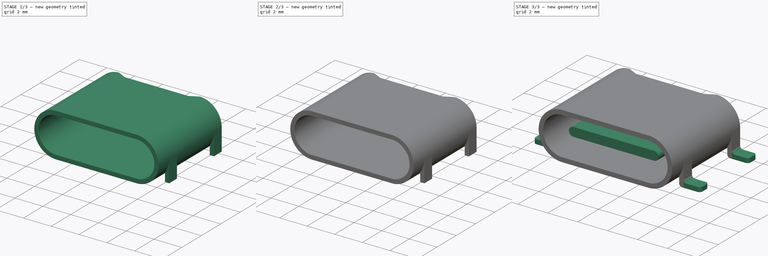
[diagram: build sequence overview — one tinted view per stage of 3, left to right]
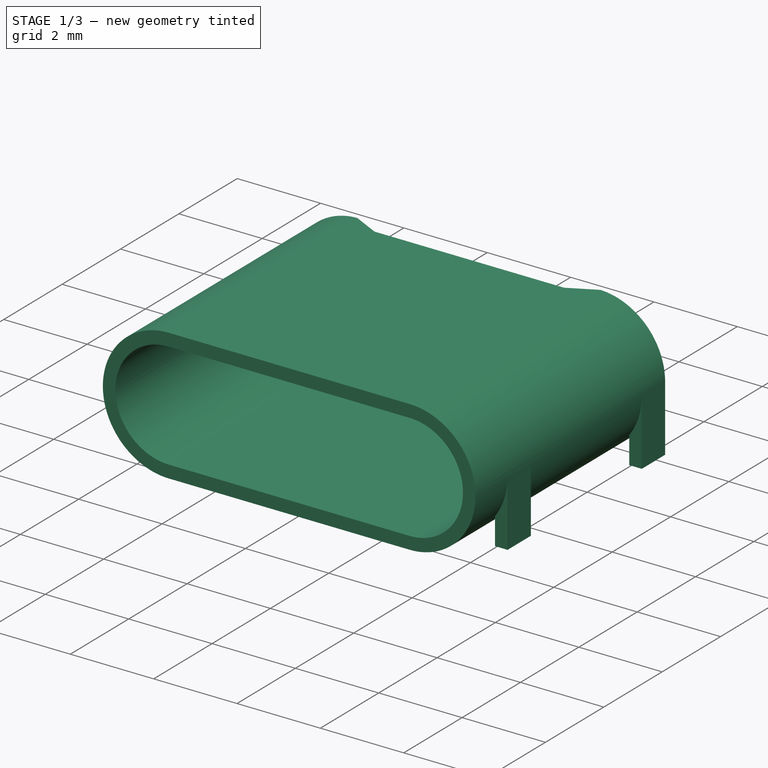
[diagram: stage 1 of 3 — iso view after this stage's code; geometry added in this stage tinted green]
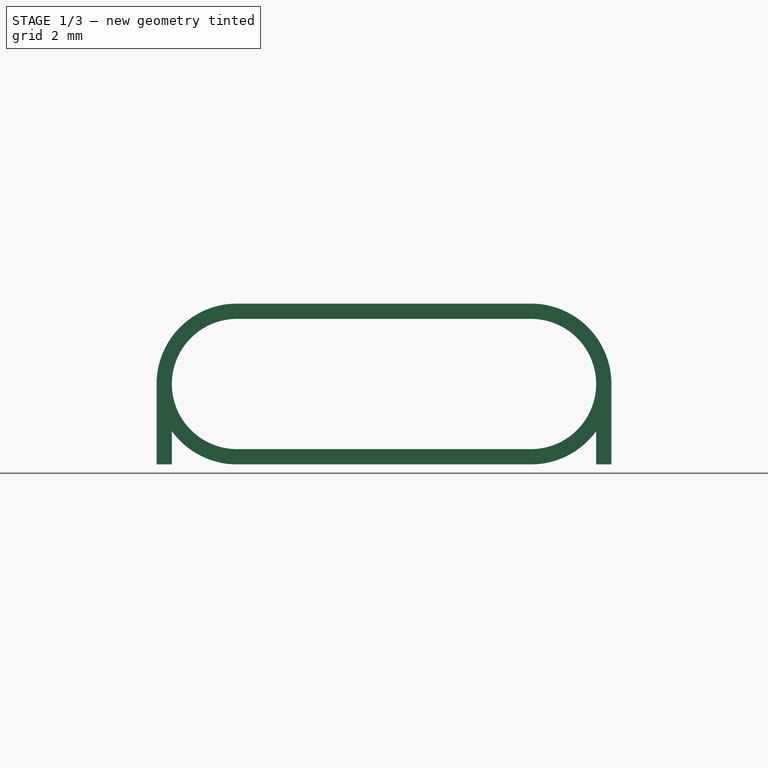
[diagram: stage 1 of 3 — front view after this stage's code; geometry added in this stage tinted green]
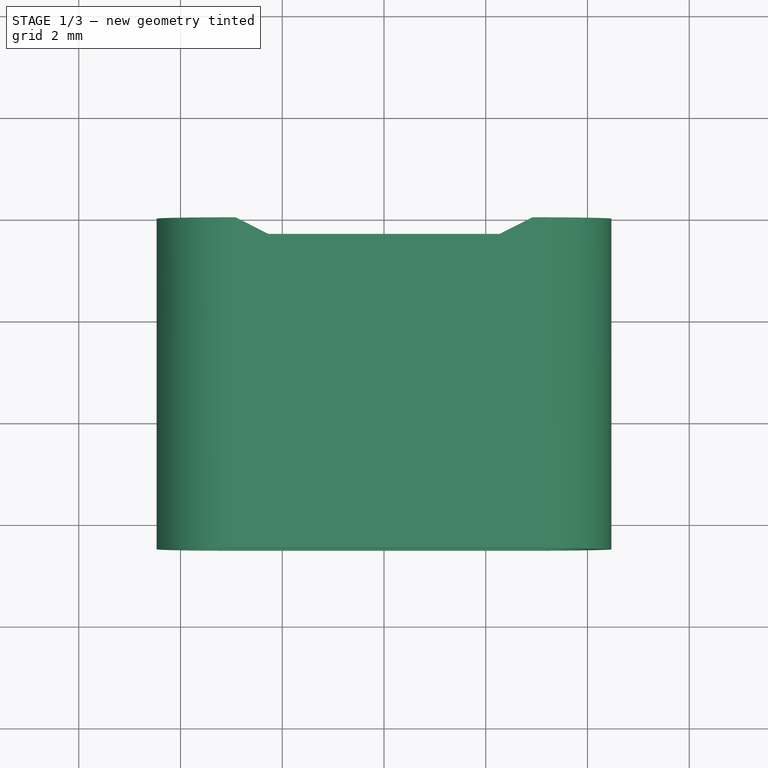
[diagram: stage 1 of 3 — top view after this stage's code; geometry added in this stage tinted green]
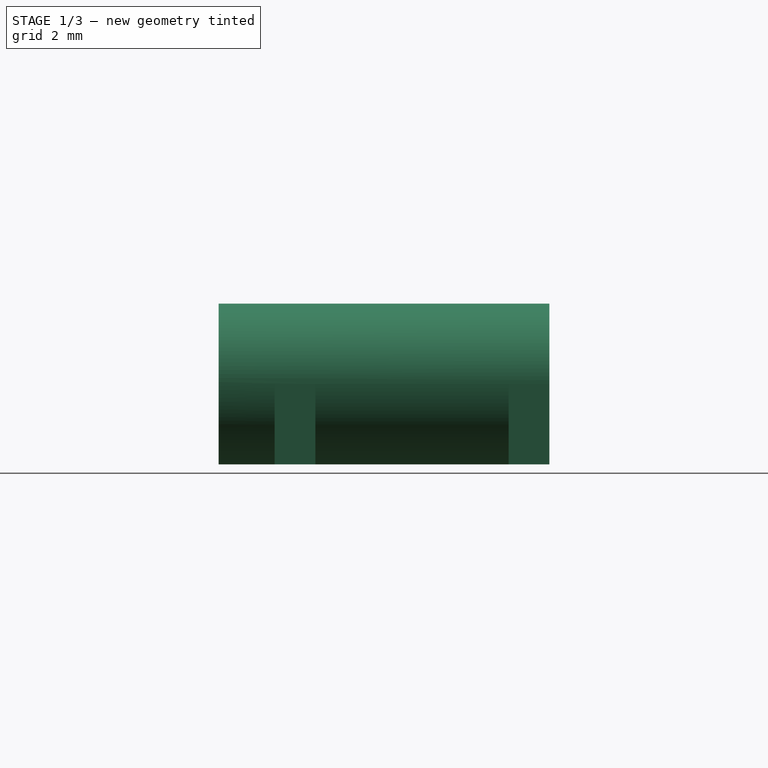
[diagram: stage 1 of 3 — right view after this stage's code; geometry added in this stage tinted green]
FCSTD DOCUMENT  (FreeCAD 0.20R27537 (Git))
Label: BTC-TC6S-23
License: All rights reserved
LicenseURL: http://en.wikipedia.org/wiki/All_rights_reserved
objects: Sketcher::SketchObject×9, PartDesign::Pad×6, PartDesign::Plane×3, PartDesign::Pocket×1, PartDesign::Fillet×1, PartDesign::Body×1
note: 29 computed .brp shape members not serialized (recipe doc carries the construction recipe); baked Part::Feature solids carry a one-line shape summary decoded from their .brp

FEATURE [Sketcher::SketchObject] Sketch
  FullyConstrained = true
  MapMode = 5
  Placement = pos=(0,0,0) rot=(1,0,0;1.5708rad)
  Support = -> [XZ_Plane]
  sketch-geometry (10):
    g0: ArcOfCircle CenterX=-2.89 CenterY=1.58 CenterZ=0 NormalX=0 NormalY=0 NormalZ=1 AngleXU=0 Radius=1.58 StartAngle=1.5708 EndAngle=4.71239
    g1: ArcOfCircle CenterX=2.89 CenterY=1.58 CenterZ=0 NormalX=0 NormalY=0 NormalZ=1 AngleXU=0 Radius=1.58 StartAngle=4.71239 EndAngle=7.85398
    g2: LineSegment StartX=-2.89 StartY=0 StartZ=0 EndX=2.89 EndY=0 EndZ=0
    g3: LineSegment StartX=2.89 StartY=3.16 StartZ=0 EndX=-2.89 EndY=3.16 EndZ=0
    g4: GeomPoint X=-4.47 Y=1.58 Z=0
    g5: GeomPoint X=4.47 Y=1.58 Z=0
    g6: ArcOfCircle CenterX=-2.89 CenterY=1.58 CenterZ=0 NormalX=0 NormalY=0 NormalZ=1 AngleXU=0 Radius=1.28 StartAngle=1.5708 EndAngle=4.71239
    g7: ArcOfCircle CenterX=2.89 CenterY=1.58 CenterZ=0 NormalX=0 NormalY=0 NormalZ=1 AngleXU=0 Radius=1.28 StartAngle=4.71239 EndAngle=7.85398
    g8: LineSegment StartX=-2.89 StartY=0.3 StartZ=0 EndX=2.89 EndY=0.3 EndZ=0
    g9: LineSegment StartX=2.89 StartY=2.86 StartZ=0 EndX=-2.89 EndY=2.86 EndZ=0
  constraints (21):
    c: Tangent(g0,g2) = -1.5708
    c: Tangent(g2,g1) = -1.5708
    c: Tangent(g1,g3) = -1.5708
    c: Tangent(g3,g0) = -1.5708
    c: Equal(g0,g1)
    c: PointOnObject(g0,g-1)
    c: DistanceY(g0,g0) = 3.16
    c: PointOnObject(g5,g1)
    c: PointOnObject(g4,g0)
    c: Horizontal(g4,g5)
    c: Horizontal(g4,g0)
    c: DistanceX(g4,g5) = 8.94
    c: Symmetric(g0,g1,g-2)
    c: Tangent(g6,g8) = -1.5708
    c: Tangent(g8,g7) = -1.5708
    c: Tangent(g7,g9) = -1.5708
    c: Tangent(g9,g6) = -1.5708
    c: Equal(g6,g7)
    c: Symmetric(g6,g7,g-2)
    c: Coincident(g6,g0)
    c: DistanceY(g6,g0) = 0.3
FEATURE [PartDesign::Pad] Pad
  Direction = (0,-1,2e-16)
  Length = 6.5
  Length2 = 10
  Placement = pos=(0,0,0) rot=(1,0,0;1.5708rad)
  Profile = -> Sketch
  ReferenceAxis = -> Sketch [N_Axis]
  Type = 0
FEATURE [PartDesign::Plane] DatumPlane  label="Top"
  Length = 60
  MapMode = 5
  Placement = pos=(0,2.1e-15,3.16) rot=(0,0,1;3.14159rad)
  ResizeMode = 0
  Support = -> [Pad]
  Width = 60
FEATURE [Sketcher::SketchObject] Sketch001
  FullyConstrained = false
  MapMode = 5
  Placement = pos=(0,2.1e-15,3.16) rot=(0,0,1;3.14159rad)
  Support = -> [DatumPlane]
  sketch-geometry (4):
    g0: LineSegment StartX=-2.917 StartY=0 StartZ=0 EndX=2.917 EndY=0 EndZ=0
    g1: LineSegment StartX=2.917 StartY=0 StartZ=0 EndX=2.27549 EndY=0.326 EndZ=0
    g2: LineSegment StartX=2.27549 StartY=0.326 StartZ=0 EndX=-2.27549 EndY=0.326 EndZ=0
    g3: LineSegment StartX=-2.917 StartY=0 StartZ=0 EndX=-2.27549 EndY=0.326 EndZ=0
  constraints (9):
    c: PointOnObject(g0,g-1)
    c: Coincident(g0,g1)
    c: Coincident(g1,g2)
    c: Coincident(g3,g0)
    c: Coincident(g3,g2)
    c: DistanceY(g0,g1) = 0.326
    c: DistanceX(g0,g0) = 5.834
    c: Symmetric(g2,g1,g-2)
    c: Symmetric(g0,g0,g-2)
FEATURE [PartDesign::Pocket] Pocket  label="topBackCutout"
  BaseFeature = -> Pad
  Direction = (0,-7e-16,-1)
  Length = 1
  Length2 = 5
  Placement = pos=(0,0,0) rot=(1,0,0;1.5708rad)
  Profile = -> Sketch001
  ReferenceAxis = -> Sketch001 [N_Axis]
  Type = 1
FEATURE [PartDesign::Plane] DatumPlane001  label="BottomPlane"
  Length = 60
  MapMode = 5
  Placement = pos=(0,0,0) rot=(1,0,0;3.14159rad)
  ResizeMode = 0
  Support = -> [Pocket]
  Width = 60
FEATURE [Sketcher::SketchObject] Sketch002
  FullyConstrained = true
  MapMode = 5
  Placement = pos=(0,0,0) rot=(1,0,0;3.14159rad)
  Support = -> [DatumPlane001]
  sketch-geometry (16):
    g0: LineSegment StartX=-4.47 StartY=5.4 StartZ=0 EndX=-4.17 EndY=5.4 EndZ=0
    g1: LineSegment StartX=-4.17 StartY=5.4 StartZ=0 EndX=-4.17 EndY=4.6 EndZ=0
    g2: LineSegment StartX=-4.17 StartY=4.6 StartZ=0 EndX=-4.47 EndY=4.6 EndZ=0
    g3: LineSegment StartX=-4.47 StartY=4.6 StartZ=0 EndX=-4.47 EndY=5.4 EndZ=0
    g4: LineSegment StartX=4.17 StartY=5.4 StartZ=0 EndX=4.47 EndY=5.4 EndZ=0
    g5: LineSegment StartX=4.47 StartY=5.4 StartZ=0 EndX=4.47 EndY=4.6 EndZ=0
    g6: LineSegment StartX=4.47 StartY=4.6 StartZ=0 EndX=4.17 EndY=4.6 EndZ=0
    g7: LineSegment StartX=4.17 StartY=4.6 StartZ=0 EndX=4.17 EndY=5.4 EndZ=0
    g8: LineSegment StartX=-4.47 StartY=0.8 StartZ=0 EndX=-4.17 EndY=0.8 EndZ=0
    g9: LineSegment StartX=-4.17 StartY=0.8 StartZ=0 EndX=-4.17 EndY=0 EndZ=0
    g10: LineSegment StartX=-4.17 StartY=0 StartZ=0 EndX=-4.47 EndY=0 EndZ=0
    g11: LineSegment StartX=-4.47 StartY=0 StartZ=0 EndX=-4.47 EndY=0.8 EndZ=0
    g12: LineSegment StartX=4.17 StartY=0.8 StartZ=0 EndX=4.47 EndY=0.8 EndZ=0
    g13: LineSegment StartX=4.47 StartY=0.8 StartZ=0 EndX=4.47 EndY=0 EndZ=0
    g14: LineSegment StartX=4.47 StartY=0 StartZ=0 EndX=4.17 EndY=0 EndZ=0
    g15: LineSegment StartX=4.17 StartY=0 StartZ=0 EndX=4.17 EndY=0.8 EndZ=0
  constraints (46):
    c: Coincident(g0,g1)
    c: Coincident(g1,g2)
    c: Coincident(g2,g3)
    c: Coincident(g3,g0)
    c: Horizontal(g0)
    c: Horizontal(g2)
    c: Vertical(g1)
    c: Vertical(g3)
    c: Coincident(g4,g5)
    c: Coincident(g5,g6)
    c: Coincident(g6,g7)
    c: Coincident(g7,g4)
    c: Horizontal(g4)
    c: Horizontal(g6)
    c: Vertical(g5)
    c: Vertical(g7)
    c: Coincident(g8,g9)
    c: Coincident(g9,g10)
    c: Coincident(g10,g11)
    c: Coincident(g11,g8)
    c: Horizontal(g8)
    c: Horizontal(g10)
    c: Vertical(g9)
    c: Vertical(g11)
    c: PointOnObject(g9,g-1)
    c: Coincident(g12,g13)
    c: Coincident(g13,g14)
    c: Coincident(g14,g15)
    c: Coincident(g15,g12)
    c: Horizontal(g12)
    c: Horizontal(g14)
    c: Vertical(g13)
    c: Vertical(g15)
    c: PointOnObject(g13,g-1)
    c: Equal(g8,g2)
    c: Equal(g8,g12)
    c: Equal(g1,g7)
    c: Symmetric(g0,g4,g-2)
    c: Vertical(g8,g2)
    c: Symmetric(g8,g12,g-2)
    c: Vertical(g5,g12)
    c: DistanceY(g5,g5) = 0.8
    c: DistanceY(g13,g13) = 0.8
    c: DistanceY(g12,g6) = 3.8
    c: DistanceX(g2,g2) = 0.3
    c: DistanceX(g0,g4) = 8.94
FEATURE [PartDesign::Pad] Pad001  label="Legs"
  BaseFeature = -> Pocket
  Direction = (0,-1.1e-15,-1)
  Length = 1.58
  Length2 = 0.8
  Placement = pos=(0,0,0) rot=(1,0,0;1.5708rad)
  Profile = -> Sketch002
  ReferenceAxis = -> Sketch002 [N_Axis]
  Reversed = true
  Type = 0
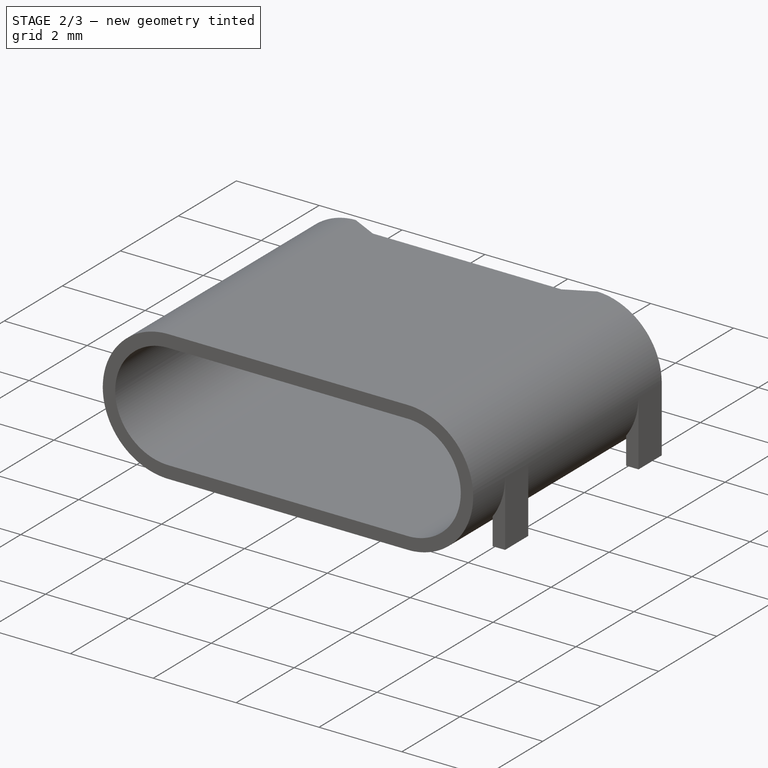
[diagram: stage 2 of 3 — iso view after this stage's code; geometry added in this stage tinted green]
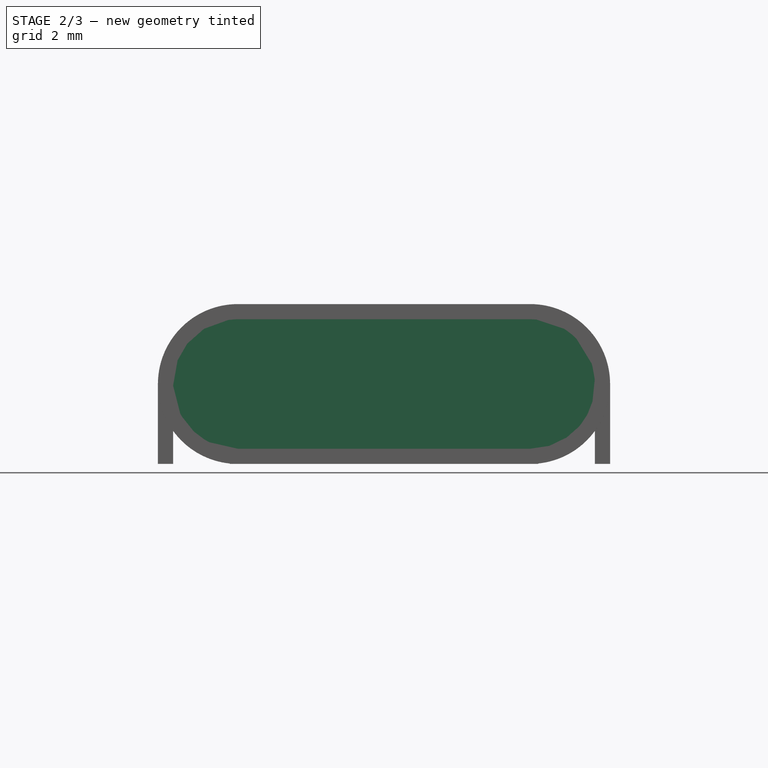
[diagram: stage 2 of 3 — front view after this stage's code; geometry added in this stage tinted green]
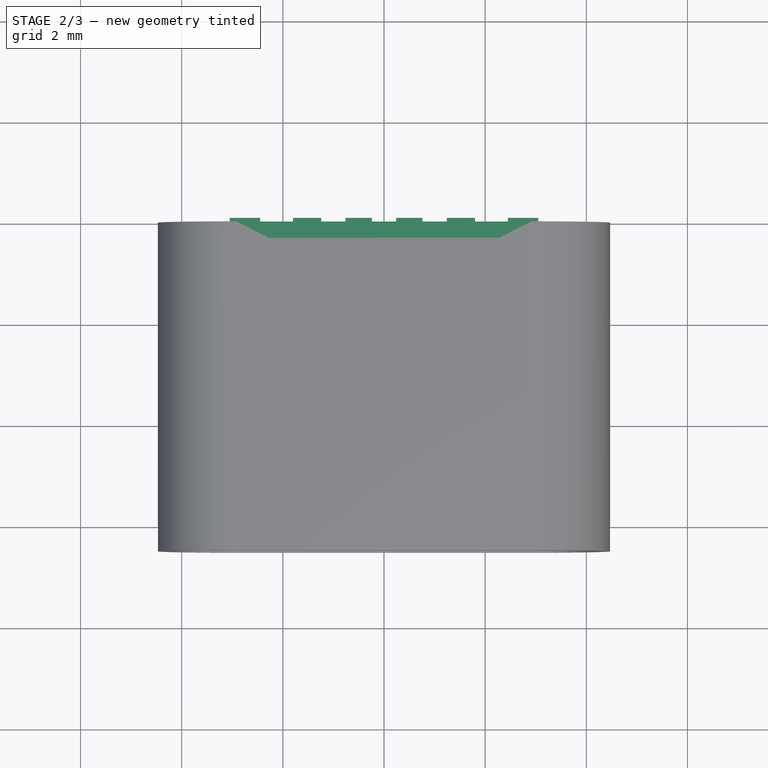
[diagram: stage 2 of 3 — top view after this stage's code; geometry added in this stage tinted green]
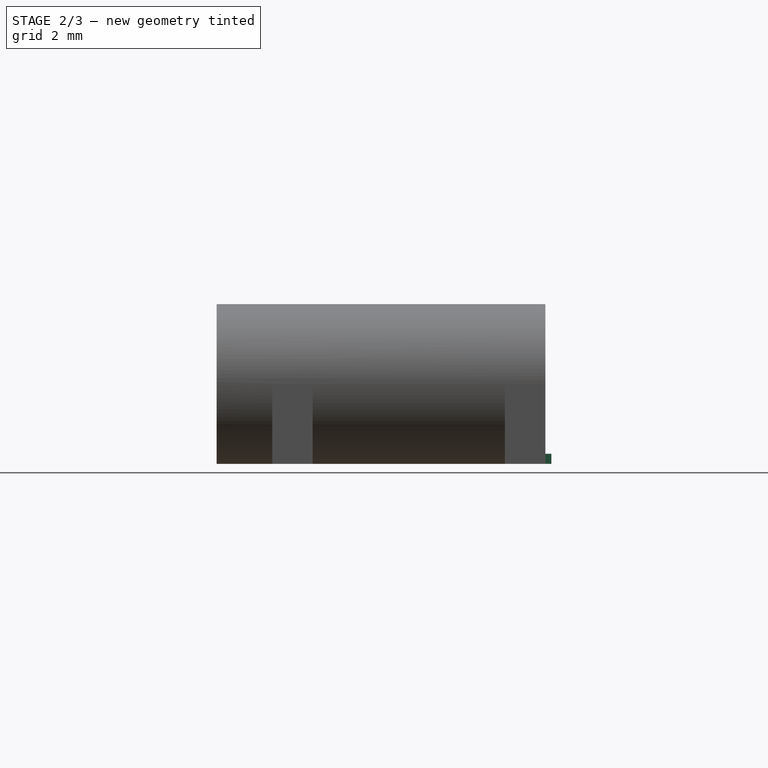
[diagram: stage 2 of 3 — right view after this stage's code; geometry added in this stage tinted green]
FEATURE [Sketcher::SketchObject] Sketch003  label="OneSidePins"
  FullyConstrained = true
  MapMode = 5
  Placement = pos=(0,0,0) rot=(1,0,0;3.14159rad)
  Support = -> [DatumPlane001]
  expr: Constraints[28] = 1 / 2 - 0.52 / 2
  sketch-geometry (12):
    g0: LineSegment StartX=-3.05 StartY=0.58 StartZ=0 EndX=-2.45 EndY=0.58 EndZ=0
    g1: LineSegment StartX=-2.45 StartY=0.58 StartZ=0 EndX=-2.45 EndY=-0.12 EndZ=0
    g2: LineSegment StartX=-2.45 StartY=-0.12 StartZ=0 EndX=-3.05 EndY=-0.12 EndZ=0
    g3: LineSegment StartX=-3.05 StartY=-0.12 StartZ=0 EndX=-3.05 EndY=0.58 EndZ=0
    g4: LineSegment StartX=-1.8 StartY=0.58 StartZ=0 EndX=-1.24 EndY=0.58 EndZ=0
    g5: LineSegment StartX=-1.24 StartY=0.58 StartZ=0 EndX=-1.24 EndY=-0.12 EndZ=0
    g6: LineSegment StartX=-1.24 StartY=-0.12 StartZ=0 EndX=-1.8 EndY=-0.12 EndZ=0
    g7: LineSegment StartX=-1.8 StartY=-0.12 StartZ=0 EndX=-1.8 EndY=0.58 EndZ=0
    g8: LineSegment StartX=-0.76 StartY=0.58 StartZ=0 EndX=-0.24 EndY=0.58 EndZ=0
    g9: LineSegment StartX=-0.24 StartY=0.58 StartZ=0 EndX=-0.24 EndY=-0.12 EndZ=0
    g10: LineSegment StartX=-0.24 StartY=-0.12 StartZ=0 EndX=-0.76 EndY=-0.12 EndZ=0
    g11: LineSegment StartX=-0.76 StartY=-0.12 StartZ=0 EndX=-0.76 EndY=0.58 EndZ=0
  constraints (36):
    c: Coincident(g0,g1)
    c: Coincident(g1,g2)
    c: Coincident(g2,g3)
    c: Coincident(g3,g0)
    c: Horizontal(g0)
    c: Horizontal(g2)
    c: Vertical(g1)
    c: Vertical(g3)
    c: Coincident(g4,g5)
    c: Coincident(g5,g6)
    c: Coincident(g6,g7)
    c: Coincident(g7,g4)
    c: Horizontal(g4)
    c: Horizontal(g6)
    c: Vertical(g5)
    c: Vertical(g7)
    c: Coincident(g8,g9)
    c: Coincident(g9,g10)
    c: Coincident(g10,g11)
    c: Coincident(g11,g8)
    c: Horizontal(g8)
    c: Horizontal(g10)
    c: Vertical(g9)
    c: Vertical(g11)
    c: Horizontal(g8,g4)
    c: Equal(g1,g7)
    c: Equal(g11,g5)
    c: DistanceY(g9,g-1) = 0.12
    c: DistanceX(g9,g-1) = 0.24
    c: DistanceX(g0,g0) = 0.6
    c: Horizontal(g0,g4)
    c: DistanceX(g6,g6) = 0.56
    c: DistanceX(g10,g10) = 0.52
    c: DistanceY(g11,g11) = 0.7
    c: DistanceX(g4,g-1) = 1.24
    c: DistanceX(g0,g-1) = 2.45
FEATURE [Sketcher::SketchObject] MirroredSketch  label="OtherPins"
  FullyConstrained = false
  Placement = pos=(0,0,0) rot=(1,0,0;3.14159rad)
  sketch-geometry (12):
    g0: LineSegment StartX=3.05 StartY=0.58 StartZ=0 EndX=2.45 EndY=0.58 EndZ=0
    g1: LineSegment StartX=2.45 StartY=0.58 StartZ=0 EndX=2.45 EndY=-0.12 EndZ=0
    g2: LineSegment StartX=2.45 StartY=-0.12 StartZ=0 EndX=3.05 EndY=-0.12 EndZ=0
    g3: LineSegment StartX=3.05 StartY=-0.12 StartZ=0 EndX=3.05 EndY=0.58 EndZ=0
    g4: LineSegment StartX=1.8 StartY=0.58 StartZ=0 EndX=1.24 EndY=0.58 EndZ=0
    g5: LineSegment StartX=1.24 StartY=0.58 StartZ=0 EndX=1.24 EndY=-0.12 EndZ=0
    g6: LineSegment StartX=1.24 StartY=-0.12 StartZ=0 EndX=1.8 EndY=-0.12 EndZ=0
    g7: LineSegment StartX=1.8 StartY=-0.12 StartZ=0 EndX=1.8 EndY=0.58 EndZ=0
    g8: LineSegment StartX=0.76 StartY=0.58 StartZ=0 EndX=0.24 EndY=0.58 EndZ=0
    g9: LineSegment StartX=0.24 StartY=0.58 StartZ=0 EndX=0.24 EndY=-0.12 EndZ=0
    g10: LineSegment StartX=0.24 StartY=-0.12 StartZ=0 EndX=0.76 EndY=-0.12 EndZ=0
    g11: LineSegment StartX=0.76 StartY=-0.12 StartZ=0 EndX=0.76 EndY=0.58 EndZ=0
  constraints (26):
    c: Coincident(g0,g1)
    c: Coincident(g1,g2)
    c: Coincident(g2,g3)
    c: Coincident(g3,g0)
    c: Horizontal(g0)
    c: Horizontal(g2)
    c: Vertical(g1)
    c: Vertical(g3)
    c: Coincident(g4,g5)
    c: Coincident(g5,g6)
    c: Coincident(g6,g7)
    c: Coincident(g7,g4)
    c: Horizontal(g4)
    c: Horizontal(g6)
    c: Vertical(g5)
    c: Vertical(g7)
    c: Coincident(g8,g9)
    c: Coincident(g9,g10)
    c: Coincident(g10,g11)
    c: Coincident(g11,g8)
    c: Horizontal(g8)
    c: Horizontal(g10)
    c: Vertical(g9)
    c: Vertical(g11)
    c: Equal(g1,g7)
    c: Equal(g11,g5)
FEATURE [Sketcher::SketchObject] Sketch007  label="BothPins"
  FullyConstrained = false
  Placement = pos=(0,0,0) rot=(1,0,0;3.14159rad)
  sketch-geometry (24):
    g0: LineSegment StartX=-3.05 StartY=0.58 StartZ=0 EndX=-2.45 EndY=0.58 EndZ=0
    g1: LineSegment StartX=-2.45 StartY=0.58 StartZ=0 EndX=-2.45 EndY=-0.12 EndZ=0
    g2: LineSegment StartX=-2.45 StartY=-0.12 StartZ=0 EndX=-3.05 EndY=-0.12 EndZ=0
    g3: LineSegment StartX=-3.05 StartY=-0.12 StartZ=0 EndX=-3.05 EndY=0.58 EndZ=0
    g4: LineSegment StartX=-1.8 StartY=0.58 StartZ=0 EndX=-1.24 EndY=0.58 EndZ=0
    g5: LineSegment StartX=-1.24 StartY=0.58 StartZ=0 EndX=-1.24 EndY=-0.12 EndZ=0
    g6: LineSegment StartX=-1.24 StartY=-0.12 StartZ=0 EndX=-1.8 EndY=-0.12 EndZ=0
    g7: LineSegment StartX=-1.8 StartY=-0.12 StartZ=0 EndX=-1.8 EndY=0.58 EndZ=0
    g8: LineSegment StartX=-0.76 StartY=0.58 StartZ=0 EndX=-0.24 EndY=0.58 EndZ=0
    g9: LineSegment StartX=-0.24 StartY=0.58 StartZ=0 EndX=-0.24 EndY=-0.12 EndZ=0
    g10: LineSegment StartX=-0.24 StartY=-0.12 StartZ=0 EndX=-0.76 EndY=-0.12 EndZ=0
    g11: LineSegment StartX=-0.76 StartY=-0.12 StartZ=0 EndX=-0.76 EndY=0.58 EndZ=0
    g12: LineSegment StartX=3.05 StartY=0.58 StartZ=0 EndX=2.45 EndY=0.58 EndZ=0
    g13: LineSegment StartX=2.45 StartY=0.58 StartZ=0 EndX=2.45 EndY=-0.12 EndZ=0
    g14: LineSegment StartX=2.45 StartY=-0.12 StartZ=0 EndX=3.05 EndY=-0.12 EndZ=0
    g15: LineSegment StartX=3.05 StartY=-0.12 StartZ=0 EndX=3.05 EndY=0.58 EndZ=0
    g16: LineSegment StartX=1.8 StartY=0.58 StartZ=0 EndX=1.24 EndY=0.58 EndZ=0
    g17: LineSegment StartX=1.24 StartY=0.58 StartZ=0 EndX=1.24 EndY=-0.12 EndZ=0
    g18: LineSegment StartX=1.24 StartY=-0.12 StartZ=0 EndX=1.8 EndY=-0.12 EndZ=0
    g19: LineSegment StartX=1.8 StartY=-0.12 StartZ=0 EndX=1.8 EndY=0.58 EndZ=0
    g20: LineSegment StartX=0.76 StartY=0.58 StartZ=0 EndX=0.24 EndY=0.58 EndZ=0
    g21: LineSegment StartX=0.24 StartY=0.58 StartZ=0 EndX=0.24 EndY=-0.12 EndZ=0
    g22: LineSegment StartX=0.24 StartY=-0.12 StartZ=0 EndX=0.76 EndY=-0.12 EndZ=0
    g23: LineSegment StartX=0.76 StartY=-0.12 StartZ=0 EndX=0.76 EndY=0.58 EndZ=0
  constraints (62):
    c: Coincident(g0,g1)
    c: Coincident(g1,g2)
    c: Coincident(g2,g3)
    c: Coincident(g3,g0)
    c: Horizontal(g0)
    c: Horizontal(g2)
    c: Vertical(g1)
    c: Vertical(g3)
    c: Coincident(g4,g5)
    c: Coincident(g5,g6)
    c: Coincident(g6,g7)
    c: Coincident(g7,g4)
    c: Horizontal(g4)
    c: Horizontal(g6)
    c: Vertical(g5)
    c: Vertical(g7)
    c: Coincident(g8,g9)
    c: Coincident(g9,g10)
    c: Coincident(g10,g11)
    c: Coincident(g11,g8)
    c: Horizontal(g8)
    c: Horizontal(g10)
    c: Vertical(g9)
    c: Vertical(g11)
    c: Horizontal(g8,g4)
    c: Equal(g1,g7)
    c: Equal(g11,g5)
    c: DistanceY(g9,g-1) = 0.12
    c: DistanceX(g9,g-1) = 0.24
    c: DistanceX(g0,g0) = 0.6
    c: Horizontal(g0,g4)
    c: DistanceX(g6,g6) = 0.56
    c: DistanceX(g10,g10) = 0.52
    c: DistanceY(g11,g11) = 0.7
    c: DistanceX(g4,g-1) = 1.24
    c: DistanceX(g0,g-1) = 2.45
    c: Coincident(g12,g13)
    c: Coincident(g13,g14)
    c: Coincident(g14,g15)
    c: Coincident(g15,g12)
    c: Horizontal(g12)
    c: Horizontal(g14)
    c: Vertical(g13)
    c: Vertical(g15)
    c: Coincident(g16,g17)
    c: Coincident(g17,g18)
    c: Coincident(g18,g19)
    c: Coincident(g19,g16)
    c: Horizontal(g16)
    c: Horizontal(g18)
    c: Vertical(g17)
    c: Vertical(g19)
    c: Coincident(g20,g21)
    c: Coincident(g21,g22)
    c: Coincident(g22,g23)
    c: Coincident(g23,g20)
    c: Horizontal(g20)
    c: Horizontal(g22)
    c: Vertical(g21)
    c: Vertical(g23)
    c: Equal(g13,g19)
    c: Equal(g23,g17)
FEATURE [PartDesign::Pad] Pad002  label="Pins"
  BaseFeature = -> Pad001
  Direction = (0,-1.1e-15,-1)
  Length = 0.2
  Length2 = 10
  Placement = pos=(0,0,0) rot=(1,0,0;1.5708rad)
  Profile = -> Sketch007
  Reversed = true
  Type = 0
FEATURE [PartDesign::Plane] DatumPlane002  label="ShellBack"
  Length = 60
  MapMode = 5
  Placement = pos=(0,0,0) rot=(-1,0,0;1.5708rad)
  ResizeMode = 0
  Support = -> [Pad002]
  Width = 60
FEATURE [Sketcher::SketchObject] Sketch005
  FullyConstrained = true
  MapMode = 5
  Placement = pos=(0,0,0) rot=(-1,0,0;1.5708rad)
  Support = -> [DatumPlane002]
  sketch-geometry (4):
    g0: ArcOfCircle CenterX=-2.95 CenterY=-1.58 CenterZ=0 NormalX=0 NormalY=0 NormalZ=1 AngleXU=0 Radius=1.28 StartAngle=1.5708 EndAngle=4.71239
    g1: ArcOfCircle CenterX=2.95 CenterY=-1.58 CenterZ=0 NormalX=0 NormalY=0 NormalZ=1 AngleXU=0 Radius=1.28 StartAngle=4.71239 EndAngle=7.85398
    g2: LineSegment StartX=-2.95 StartY=-2.86 StartZ=0 EndX=2.95 EndY=-2.86 EndZ=0
    g3: LineSegment StartX=2.95 StartY=-0.3 StartZ=0 EndX=-2.95 EndY=-0.3 EndZ=0
  constraints (9):
    c: Tangent(g0,g2) = -1.5708
    c: Tangent(g2,g1) = -1.5708
    c: Tangent(g1,g3) = -1.5708
    c: Tangent(g3,g0) = -1.5708
    c: Equal(g0,g1)
    c: DistanceY(g1,g1) = 2.56
    c: DistanceY(g1,g-1) = 0.3
    c: DistanceX(g0,g1) = 5.9
    c: Symmetric(g0,g1,g-2)
FEATURE [PartDesign::Pad] Pad003  label="BackPlastic"
  BaseFeature = -> Pad002
  Direction = (0,1,-2.1e-15)
  Length = 2
  Length2 = 10
  Placement = pos=(0,0,0) rot=(1,0,0;1.5708rad)
  Profile = -> Sketch005
  ReferenceAxis = -> Sketch005 [N_Axis]
  Reversed = true
  Type = 0
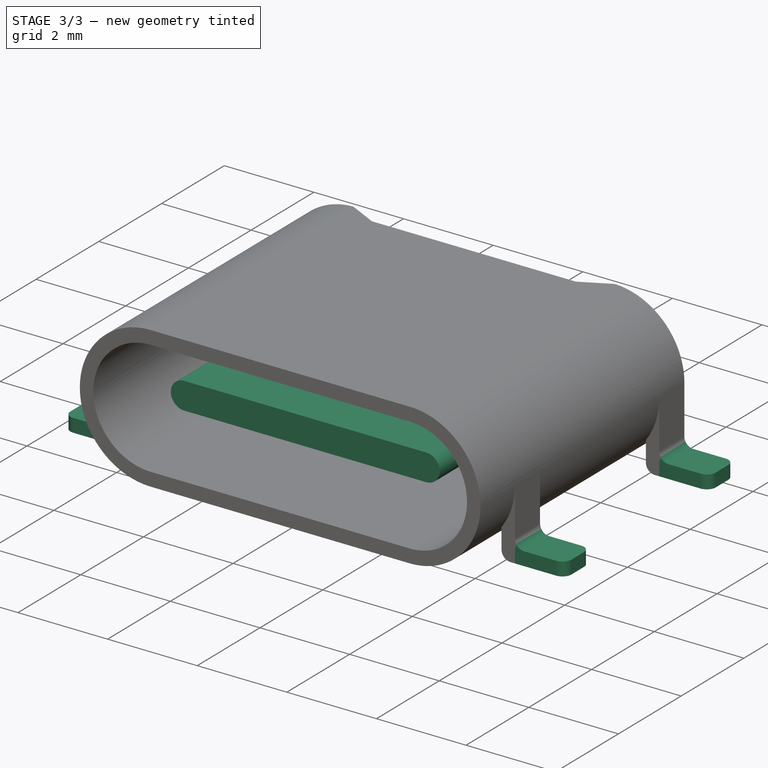
[diagram: stage 3 of 3 — iso view after this stage's code; geometry added in this stage tinted green]
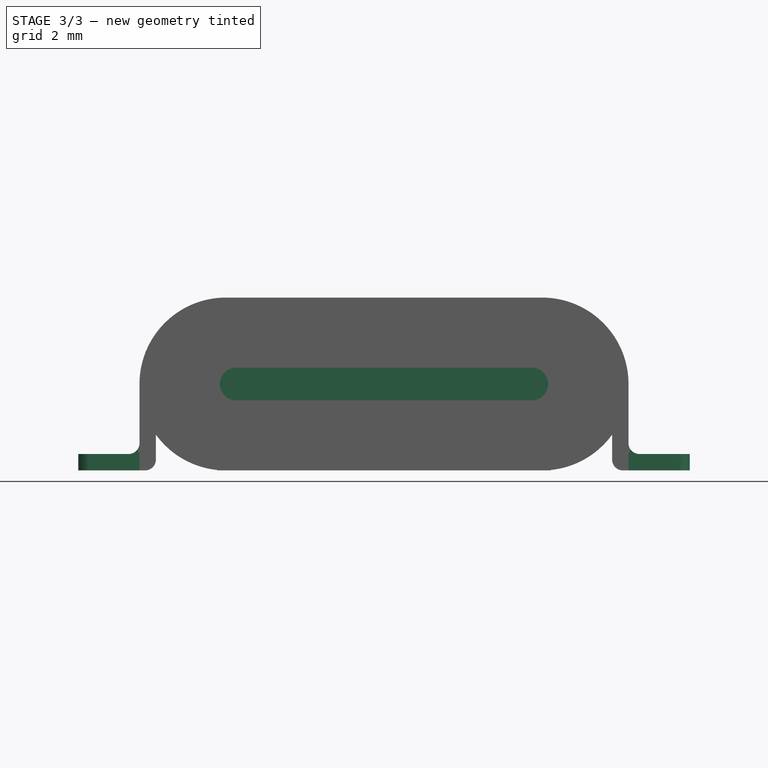
[diagram: stage 3 of 3 — front view after this stage's code; geometry added in this stage tinted green]
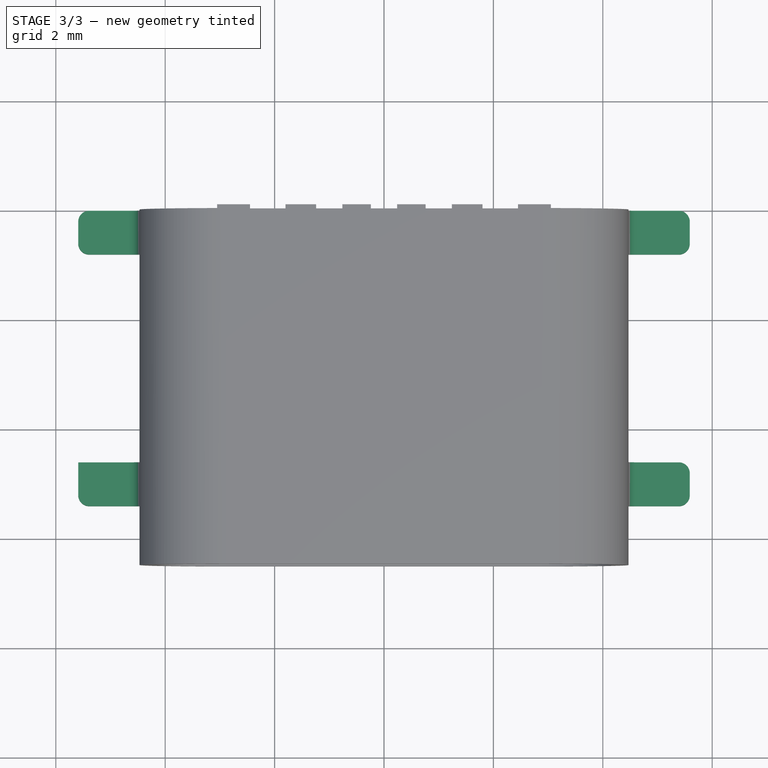
[diagram: stage 3 of 3 — top view after this stage's code; geometry added in this stage tinted green]
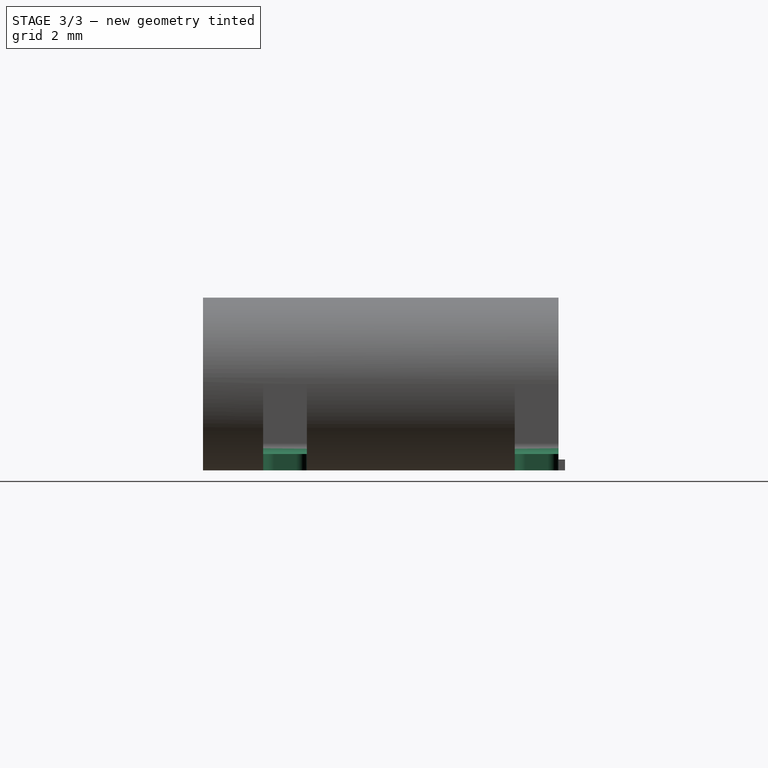
[diagram: stage 3 of 3 — right view after this stage's code; geometry added in this stage tinted green]
FEATURE [Sketcher::SketchObject] Sketch006
  FullyConstrained = true
  MapMode = 5
  Placement = pos=(0,0,0) rot=(-1,0,0;1.5708rad)
  Support = -> [DatumPlane002]
  sketch-geometry (4):
    g0: ArcOfCircle CenterX=-2.7 CenterY=-1.58 CenterZ=0 NormalX=0 NormalY=0 NormalZ=1 AngleXU=0 Radius=0.3 StartAngle=1.5708 EndAngle=4.71239
    g1: ArcOfCircle CenterX=2.7 CenterY=-1.58 CenterZ=0 NormalX=0 NormalY=0 NormalZ=1 AngleXU=0 Radius=0.3 StartAngle=4.71239 EndAngle=7.85398
    g2: LineSegment StartX=-2.7 StartY=-1.88 StartZ=0 EndX=2.7 EndY=-1.88 EndZ=0
    g3: LineSegment StartX=2.7 StartY=-1.28 StartZ=0 EndX=-2.7 EndY=-1.28 EndZ=0
  constraints (9):
    c: Tangent(g0,g2) = -1.5708
    c: Tangent(g2,g1) = -1.5708
    c: Tangent(g1,g3) = -1.5708
    c: Tangent(g3,g0) = -1.5708
    c: Equal(g0,g1)
    c: Symmetric(g1,g0,g-2)
    c: DistanceY(g1,g1) = 0.6
    c: DistanceX(g0,g1) = 5.4
    c: DistanceY(g0,g-1) = 1.58
FEATURE [PartDesign::Pad] Pad004  label="Tongue"
  BaseFeature = -> Pad003
  Direction = (0,1,-2.1e-15)
  Length = 5.7
  Length2 = 10
  Placement = pos=(0,0,0) rot=(1,0,0;1.5708rad)
  Profile = -> Sketch006
  ReferenceAxis = -> Sketch006 [N_Axis]
  Reversed = true
  Type = 0
FEATURE [Sketcher::SketchObject] Sketch008
  FullyConstrained = true
  MapMode = 5
  Placement = pos=(0,0,0) rot=(1,0,0;3.14159rad)
  Support = -> [DatumPlane001]
  sketch-geometry (16):
    g0: LineSegment StartX=-4.17 StartY=5.4 StartZ=0 EndX=-5.59 EndY=5.4 EndZ=0
    g1: LineSegment StartX=-5.59 StartY=5.4 StartZ=0 EndX=-5.59 EndY=4.6 EndZ=0
    g2: LineSegment StartX=-5.59 StartY=4.6 StartZ=0 EndX=-4.17 EndY=4.6 EndZ=0
    g3: LineSegment StartX=-4.17 StartY=4.6 StartZ=0 EndX=-4.17 EndY=5.4 EndZ=0
    g4: LineSegment StartX=-4.17 StartY=0.8 StartZ=0 EndX=-5.59 EndY=0.8 EndZ=0
    g5: LineSegment StartX=-5.59 StartY=0.8 StartZ=0 EndX=-5.59 EndY=0 EndZ=0
    g6: LineSegment StartX=-5.59 StartY=0 StartZ=0 EndX=-4.17 EndY=0 EndZ=0
    g7: LineSegment StartX=-4.17 StartY=0 StartZ=0 EndX=-4.17 EndY=0.8 EndZ=0
    g8: LineSegment StartX=4.17 StartY=0.8 StartZ=0 EndX=5.59 EndY=0.8 EndZ=0
    g9: LineSegment StartX=5.59 StartY=0.8 StartZ=0 EndX=5.59 EndY=0 EndZ=0
    g10: LineSegment StartX=5.59 StartY=0 StartZ=0 EndX=4.17 EndY=0 EndZ=0
    g11: LineSegment StartX=4.17 StartY=0 StartZ=0 EndX=4.17 EndY=0.8 EndZ=0
    g12: LineSegment StartX=4.17 StartY=5.4 StartZ=0 EndX=5.59 EndY=5.4 EndZ=0
    g13: LineSegment StartX=5.59 StartY=5.4 StartZ=0 EndX=5.59 EndY=4.6 EndZ=0
    g14: LineSegment StartX=5.59 StartY=4.6 StartZ=0 EndX=4.17 EndY=4.6 EndZ=0
    g15: LineSegment StartX=4.17 StartY=4.6 StartZ=0 EndX=4.17 EndY=5.4 EndZ=0
  constraints (47):
    c: Coincident(g0,g1)
    c: Coincident(g1,g2)
    c: Coincident(g2,g3)
    c: Coincident(g3,g0)
    c: Horizontal(g0)
    c: Horizontal(g2)
    c: Vertical(g1)
    c: Vertical(g3)
    c: Coincident(g4,g5)
    c: Coincident(g5,g6)
    c: Coincident(g6,g7)
    c: Coincident(g7,g4)
    c: Horizontal(g4)
    c: Horizontal(g6)
    c: Vertical(g5)
    c: Vertical(g7)
    c: PointOnObject(g5,g-1)
    c: Coincident(g8,g9)
    c: Coincident(g9,g10)
    c: Coincident(g10,g11)
    c: Coincident(g11,g8)
    c: Horizontal(g8)
    c: Horizontal(g10)
    c: Vertical(g9)
    c: Vertical(g11)
    c: PointOnObject(g9,g-1)
    c: Coincident(g12,g13)
    c: Coincident(g13,g14)
    c: Coincident(g14,g15)
    c: Coincident(g15,g12)
    c: Horizontal(g12)
    c: Horizontal(g14)
    c: Vertical(g13)
    c: Vertical(g15)
    c: Horizontal(g2,g14)
    c: Equal(g3,g7)
    c: Equal(g2,g4)
    c: Equal(g14,g8)
    c: Equal(g8,g4)
    c: DistanceX(g4,g-1) = 4.17
    c: DistanceY(g7,g7) = 0.8
    c: DistanceX(g2,g2) = 1.42
    c: Vertical(g4,g1)
    c: Symmetric(g4,g8,g-2)
    c: Vertical(g8,g14)
    c: DistanceY(g4,g1) = 3.8
    c: Horizontal(g0,g12)
FEATURE [PartDesign::Pad] Pad005  label="OutriggerFeet"
  BaseFeature = -> Pad004
  Direction = (0,-1.1e-15,-1)
  Length = 0.3
  Length2 = 10
  Placement = pos=(0,0,0) rot=(1,0,0;1.5708rad)
  Profile = -> Sketch008
  ReferenceAxis = -> Sketch008 [N_Axis]
  Reversed = true
  Type = 0
FEATURE [PartDesign::Fillet] Fillet
  Base = -> Pad005 [Edge243,Edge250,Edge272,Edge290,Edge101,Edge175,Edge24,Edge76,Edge187,Edge264,Edge188,Edge309,Edge308,Edge305,Edge303]
  BaseFeature = -> Pad005
  Placement = pos=(0,0,0) rot=(1,0,0;1.5708rad)
  Radius = 0.2
  SupportTransform = false
  UseAllEdges = false
FEATURE [PartDesign::Body] Body
  Group = -> [Sketch,Pad,DatumPlane,Sketch001,Pocket,DatumPlane001,Sketch002,Pad001,Sketch003,Pad002,DatumPlane002,Sketch005,Pad003,Sketch006,Pad004,Sketch008,Pad005,Fillet]
  Origin = -> Origin
  Tip = -> Fillet
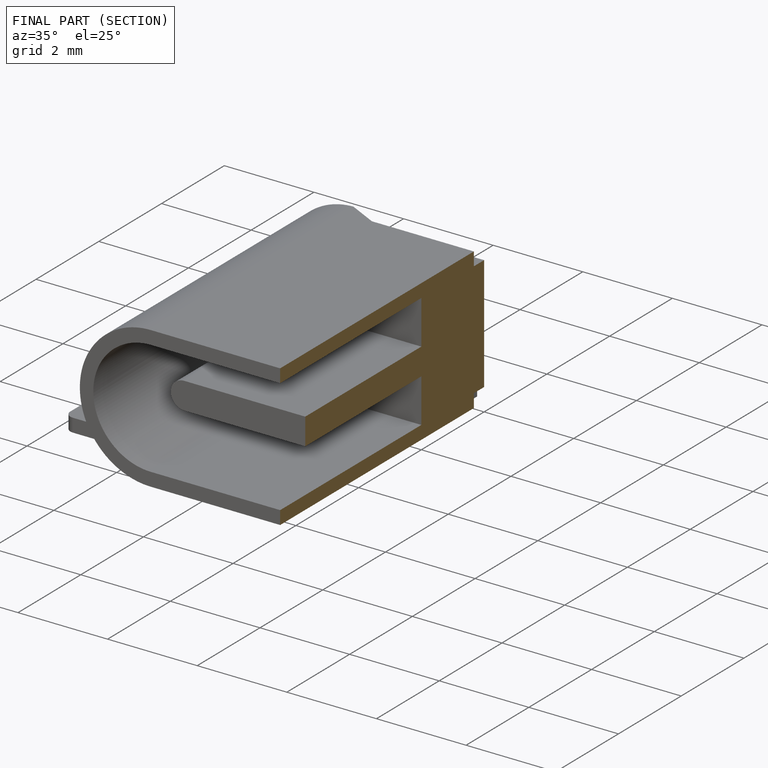
[diagram: finished part — half-section view (interior)]
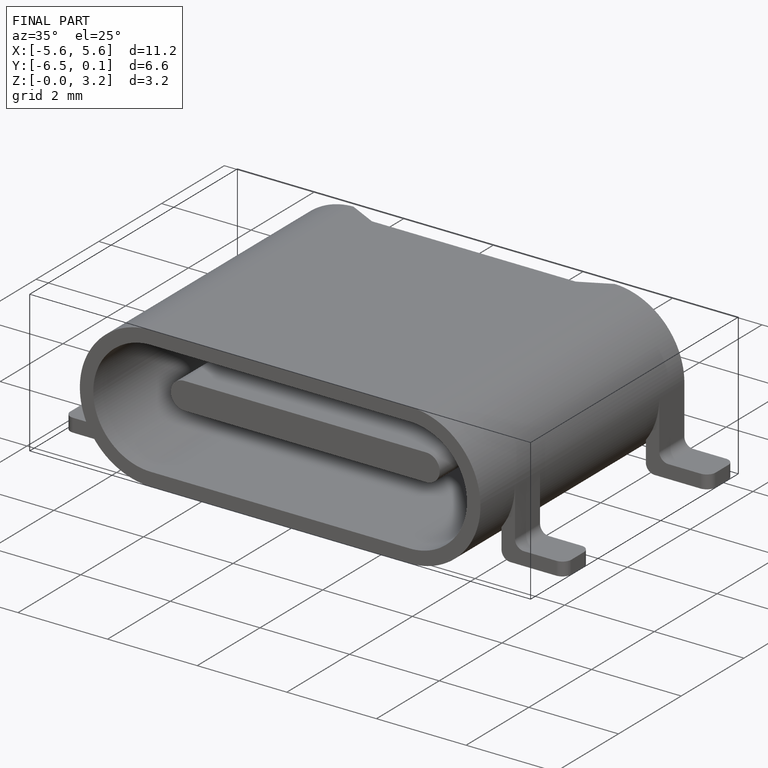
[diagram: finished part — iso view with bounding-box wireframe]
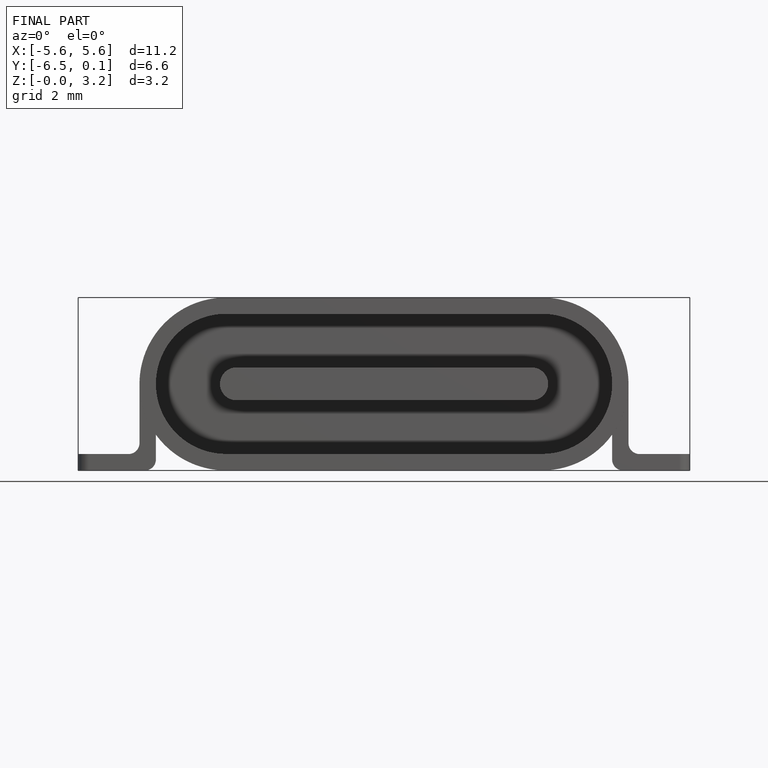
[diagram: finished part — front view with bounding-box wireframe]
